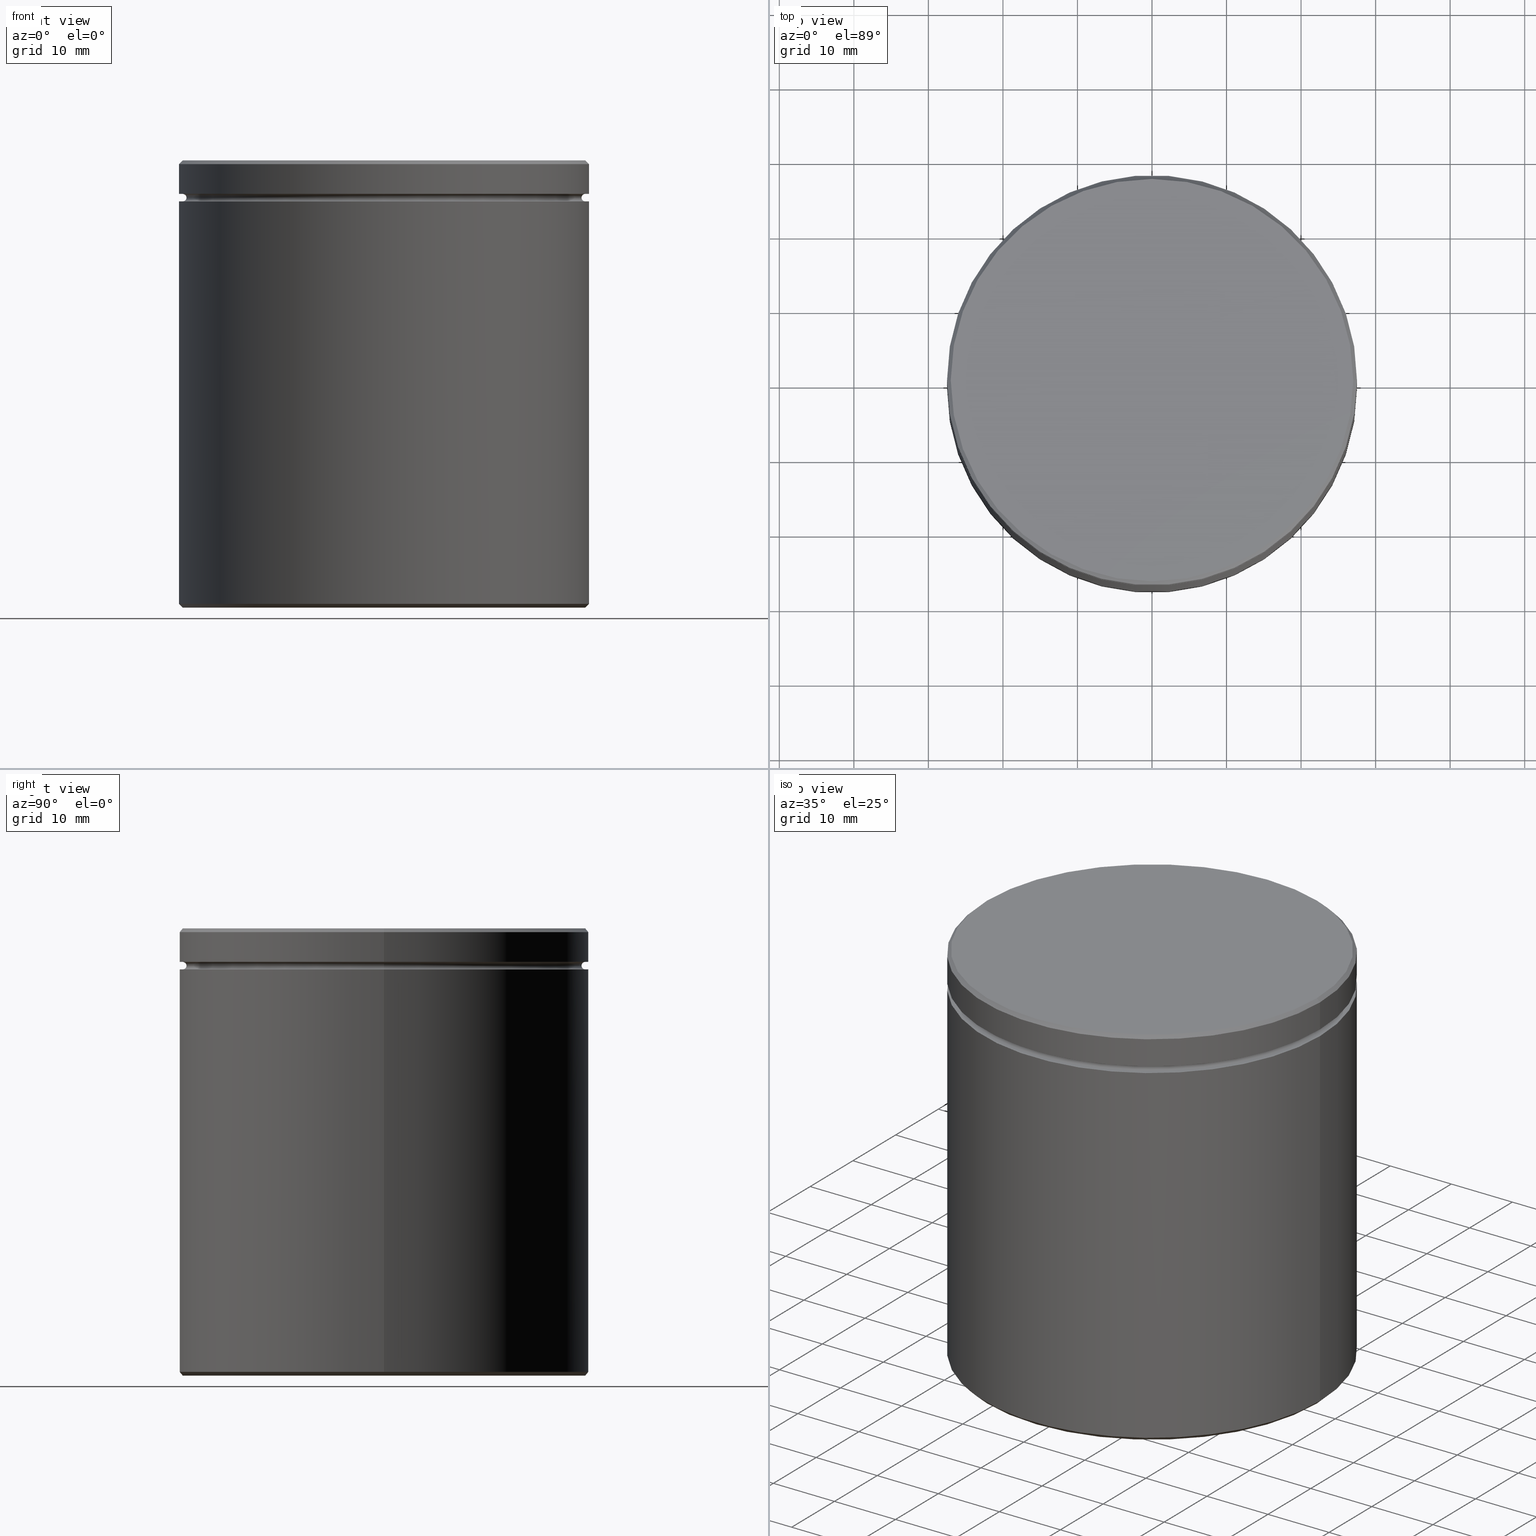
[diagram: canonical four-view strip — front | top / right | iso, engineering-drawing reading convention]
A machine part, canonical four-view strip (front | top / right | iso — engineering-drawing reading convention). The complete STEP part file that produces these views, byte-faithful:
ISO-10303-21;
HEADER;
FILE_DESCRIPTION (( 'STEP AP203' ),
    '1' );
FILE_NAME ('bf8c.STEP',
    '2024-01-02T17:55:30',
    ( '' ),
    ( '' ),
    'SwSTEP 2.0',
    'SolidWorks 2019',
    '' );
FILE_SCHEMA (( 'CONFIG_CONTROL_DESIGN' ));
ENDSEC;

DATA;
#1 = ORIENTED_EDGE ( 'NONE', *, *, #166, .F. ) ;
#2 = DIRECTION ( 'NONE',  ( -0.000000000000000000, -0.000000000000000000, 1.000000000000000000 ) ) ;
#3 = VERTEX_POINT ( 'NONE', #329 ) ;
#4 = AXIS2_PLACEMENT_3D ( 'NONE', #449, #474, #82 ) ;
#5 = DIRECTION ( 'NONE',  ( 0.000000000000000000, 0.000000000000000000, -1.000000000000000000 ) ) ;
#6 = ORIENTED_EDGE ( 'NONE', *, *, #241, .F. ) ;
#7 = EDGE_CURVE ( 'NONE', #211, #463, #333, .T. ) ;
#8 = LINE ( 'NONE', #197, #436 ) ;
#9 = ORIENTED_EDGE ( 'NONE', *, *, #166, .T. ) ;
#10 = PERSON_AND_ORGANIZATION ( #300, #244 ) ;
#11 = DIRECTION ( 'NONE',  ( 0.000000000000000000, 0.000000000000000000, -1.000000000000000000 ) ) ;
#12 = DIRECTION ( 'NONE',  ( -1.000000000000000000, 1.224646799147349509E-16, 0.000000000000000000 ) ) ;
#13 = EDGE_CURVE ( 'NONE', #356, #535, #221, .T. ) ;
#14 = FACE_OUTER_BOUND ( 'NONE', #50, .T. ) ;
#15 = AXIS2_PLACEMENT_3D ( 'NONE', #185, #49, #359 ) ;
#16 = CC_DESIGN_APPROVAL ( #229, ( #432 ) ) ;
#17 = CARTESIAN_POINT ( 'NONE',  ( 26.99999999999999289, 3.306546357697852944E-15, 0.000000000000000000 ) ) ;
#18 = APPLICATION_CONTEXT ( 'configuration controlled 3d designs of mechanical parts and assemblies' ) ;
#19 = CARTESIAN_POINT ( 'NONE',  ( -27.00000000000000000, 3.306546357697854128E-15, -5.500000000000000000 ) ) ;
#20 = DIRECTION ( 'NONE',  ( -0.000000000000000000, -0.000000000000000000, 1.000000000000000000 ) ) ;
#21 = CC_DESIGN_PERSON_AND_ORGANIZATION_ASSIGNMENT ( #10, #51, ( #510 ) ) ;
#22 = UNCERTAINTY_MEASURE_WITH_UNIT (LENGTH_MEASURE( 1.000000000000000082E-05 ), #125, 'distance_accuracy_value', 'NONE');
#23 = CARTESIAN_POINT ( 'NONE',  ( 27.00000000000000000, 3.306546357697854128E-15, -4.500000000000000888 ) ) ;
#24 = VERTEX_POINT ( 'NONE', #539 ) ;
#25 = ADVANCED_FACE ( 'NONE', ( #148 ), #240, .T. ) ;
#26 = DIRECTION ( 'NONE',  ( 0.000000000000000000, 0.000000000000000000, -1.000000000000000000 ) ) ;
#27 = CIRCLE ( 'NONE', #502, 20.00000000000000000 ) ;
#28 = CARTESIAN_POINT ( 'NONE',  ( -27.00000000000000000, 0.000000000000000000, -5.000000000000000888 ) ) ;
#29 = ORIENTED_EDGE ( 'NONE', *, *, #345, .T. ) ;
#30 = CARTESIAN_POINT ( 'NONE',  ( 27.50000000000000000, 0.000000000000000000, -59.50000000000001421 ) ) ;
#31 = DIRECTION ( 'NONE',  ( -1.000000000000000000, 0.000000000000000000, 0.000000000000000000 ) ) ;
#32 = AXIS2_PLACEMENT_3D ( 'NONE', #450, #246, #12 ) ;
#33 = AXIS2_PLACEMENT_3D ( 'NONE', #497, #11, #106 ) ;
#34 = PERSON_AND_ORGANIZATION ( #300, #244 ) ;
#35 = LOCAL_TIME ( 18, 55, 30.00000000000000000, #560 ) ;
#36 = DIRECTION ( 'NONE',  ( -0.000000000000000000, -0.000000000000000000, 1.000000000000000000 ) ) ;
#37 = EDGE_CURVE ( 'NONE', #236, #455, #309, .T. ) ;
#38 = DIRECTION ( 'NONE',  ( -1.000000000000000000, 0.000000000000000000, 0.000000000000000000 ) ) ;
#39 = EDGE_CURVE ( 'NONE', #406, #95, #88, .T. ) ;
#40 = CARTESIAN_POINT ( 'NONE',  ( 0.000000000000000000, 0.000000000000000000, -17.99999999999999645 ) ) ;
#41 = ORIENTED_EDGE ( 'NONE', *, *, #531, .F. ) ;
#42 = CIRCLE ( 'NONE', #116, 20.00000000000000000 ) ;
#43 = AXIS2_PLACEMENT_3D ( 'NONE', #520, #262, #434 ) ;
#44 = DIRECTION ( 'NONE',  ( -0.000000000000000000, -0.000000000000000000, 1.000000000000000000 ) ) ;
#45 = ORIENTED_EDGE ( 'NONE', *, *, #506, .F. ) ;
#46 = CARTESIAN_POINT ( 'NONE',  ( 0.000000000000000000, 0.000000000000000000, -4.999999999999999112 ) ) ;
#47 = ORIENTED_EDGE ( 'NONE', *, *, #202, .T. ) ;
#48 = PERSON_AND_ORGANIZATION_ROLE ( 'design_supplier' ) ;
#49 = DIRECTION ( 'NONE',  ( -0.000000000000000000, -0.000000000000000000, 1.000000000000000000 ) ) ;
#50 = EDGE_LOOP ( 'NONE', ( #228, #263, #556, #113 ) ) ;
#51 = PERSON_AND_ORGANIZATION_ROLE ( 'creator' ) ;
#52 = AXIS2_PLACEMENT_3D ( 'NONE', #83, #489, #563 ) ;
#53 = LINE ( 'NONE', #235, #420 ) ;
#54 = ORIENTED_EDGE ( 'NONE', *, *, #506, .T. ) ;
#55 = DIRECTION ( 'NONE',  ( 0.000000000000000000, 0.000000000000000000, -1.000000000000000000 ) ) ;
#56 = ORIENTED_EDGE ( 'NONE', *, *, #67, .T. ) ;
#57 = CARTESIAN_POINT ( 'NONE',  ( 27.00000000000000000, 0.000000000000000000, -5.500000000000000000 ) ) ;
#58 = DIRECTION ( 'NONE',  ( -1.000000000000000000, 0.000000000000000000, 0.000000000000000000 ) ) ;
#59 = PLANE ( 'NONE',  #284 ) ;
#60 = CIRCLE ( 'NONE', #472, 27.50000000000000000 ) ;
#61 = DIRECTION ( 'NONE',  ( 1.000000000000000000, 0.000000000000000000, 0.000000000000000000 ) ) ;
#62 = EDGE_CURVE ( 'NONE', #95, #181, #413, .T. ) ;
#63 = CARTESIAN_POINT ( 'NONE',  ( 27.00000000000000000, 3.306546357697853733E-15, -5.000000000000000888 ) ) ;
#64 = ORIENTED_EDGE ( 'NONE', *, *, #525, .F. ) ;
#65 = EDGE_CURVE ( 'NONE', #463, #211, #151, .T. ) ;
#66 = ORIENTED_EDGE ( 'NONE', *, *, #382, .T. ) ;
#67 = EDGE_CURVE ( 'NONE', #468, #211, #381, .T. ) ;
#68 = CARTESIAN_POINT ( 'NONE',  ( 0.000000000000000000, 0.000000000000000000, -17.99999999999999645 ) ) ;
#69 = VECTOR ( 'NONE', #227, 1000.000000000000000 ) ;
#70 = DIRECTION ( 'NONE',  ( 1.000000000000000000, 0.000000000000000000, 0.000000000000000000 ) ) ;
#71 = CARTESIAN_POINT ( 'NONE',  ( -27.50000000000000000, 3.367778697655221307E-15, -5.500000000000000000 ) ) ;
#72 = EDGE_CURVE ( 'NONE', #181, #461, #427, .T. ) ;
#73 = EDGE_LOOP ( 'NONE', ( #107, #191 ) ) ;
#74 = COORDINATED_UNIVERSAL_TIME_OFFSET ( 1, 0, .AHEAD. ) ;
#75 = APPROVAL ( #301, 'NEUR�EN�' ) ;
#76 = APPLICATION_CONTEXT ( 'configuration controlled 3d designs of mechanical parts and assemblies' ) ;
#77 = CIRCLE ( 'NONE', #108, 26.99999999999999289 ) ;
#78 = CIRCLE ( 'NONE', #377, 20.00000000000000000 ) ;
#79 = PERSON_AND_ORGANIZATION ( #300, #244 ) ;
#80 = LOCAL_TIME ( 18, 55, 30.00000000000000000, #135 ) ;
#81 = DIRECTION ( 'NONE',  ( -1.000000000000000000, 0.000000000000000000, 0.000000000000000000 ) ) ;
#82 = DIRECTION ( 'NONE',  ( 1.000000000000000000, 0.000000000000000000, 0.000000000000000000 ) ) ;
#83 = CARTESIAN_POINT ( 'NONE',  ( 0.000000000000000000, 0.000000000000000000, 0.000000000000000000 ) ) ;
#84 = VERTEX_POINT ( 'NONE', #257 ) ;
#85 = DATE_AND_TIME ( #169, #35 ) ;
#86 = DIRECTION ( 'NONE',  ( -0.000000000000000000, -0.000000000000000000, -1.000000000000000000 ) ) ;
#87 = ORIENTED_EDGE ( 'NONE', *, *, #516, .F. ) ;
#88 = CIRCLE ( 'NONE', #195, 26.99999999999999289 ) ;
#89 = AXIS2_PLACEMENT_3D ( 'NONE', #40, #86, #437 ) ;
#90 = CARTESIAN_POINT ( 'NONE',  ( 0.000000000000000000, 0.000000000000000000, -5.500000000000000000 ) ) ;
#91 = ORIENTED_EDGE ( 'NONE', *, *, #67, .F. ) ;
#92 = DATE_AND_TIME ( #411, #234 ) ;
#93 = CARTESIAN_POINT ( 'NONE',  ( 0.000000000000000000, 0.000000000000000000, -17.99999999999999645 ) ) ;
#94 = ADVANCED_FACE ( 'NONE', ( #464, #255 ), #561, .T. ) ;
#95 = VERTEX_POINT ( 'NONE', #212 ) ;
#96 = DIRECTION ( 'NONE',  ( -0.000000000000000000, -0.000000000000000000, 1.000000000000000000 ) ) ;
#97 = EDGE_LOOP ( 'NONE', ( #448, #142, #161, #91 ) ) ;
#98 = COORDINATED_UNIVERSAL_TIME_OFFSET ( 1, 0, .AHEAD. ) ;
#99 = AXIS2_PLACEMENT_3D ( 'NONE', #320, #548, #281 ) ;
#100 = AXIS2_PLACEMENT_3D ( 'NONE', #260, #378, #130 ) ;
#101 = FACE_OUTER_BOUND ( 'NONE', #226, .T. ) ;
#102 = EDGE_LOOP ( 'NONE', ( #9, #419 ) ) ;
#103 = APPROVAL_STATUS ( 'not_yet_approved' ) ;
#104 = DIRECTION ( 'NONE',  ( -1.000000000000000000, 0.000000000000000000, 0.000000000000000000 ) ) ;
#105 = EDGE_LOOP ( 'NONE', ( #41, #1, #56, #303 ) ) ;
#106 = DIRECTION ( 'NONE',  ( -1.000000000000000000, 0.000000000000000000, 0.000000000000000000 ) ) ;
#107 = ORIENTED_EDGE ( 'NONE', *, *, #39, .T. ) ;
#108 = AXIS2_PLACEMENT_3D ( 'NONE', #466, #467, #70 ) ;
#109 = CARTESIAN_POINT ( 'NONE',  ( 26.50000000000000000, 0.000000000000000000, -4.999999999999999112 ) ) ;
#110 = VECTOR ( 'NONE', #96, 1000.000000000000000 ) ;
#111 = ORIENTED_EDGE ( 'NONE', *, *, #324, .T. ) ;
#112 = PERSON_AND_ORGANIZATION ( #300, #244 ) ;
#113 = ORIENTED_EDGE ( 'NONE', *, *, #327, .F. ) ;
#114 = DIRECTION ( 'NONE',  ( 0.000000000000000000, 0.000000000000000000, -1.000000000000000000 ) ) ;
#115 = ADVANCED_FACE ( 'NONE', ( #299 ), #342, .F. ) ;
#116 = AXIS2_PLACEMENT_3D ( 'NONE', #68, #379, #422 ) ;
#117 = CARTESIAN_POINT ( 'NONE',  ( 0.000000000000000000, 0.000000000000000000, -60.00000000000000000 ) ) ;
#118 = TOROIDAL_SURFACE ( 'NONE', #33, 27.00000000000000000, 0.5000000000000000000 ) ;
#119 = ORIENTED_EDGE ( 'NONE', *, *, #140, .T. ) ;
#120 = EDGE_CURVE ( 'NONE', #376, #358, #292, .T. ) ;
#121 = CARTESIAN_POINT ( 'NONE',  ( 0.000000000000000000, 0.000000000000000000, -5.500000000000000000 ) ) ;
#122 = VERTEX_POINT ( 'NONE', #170 ) ;
#123 = EDGE_CURVE ( 'NONE', #568, #84, #42, .T. ) ;
#124 = DIRECTION ( 'NONE',  ( 1.000000000000000000, 0.000000000000000000, 0.000000000000000000 ) ) ;
#125 =( LENGTH_UNIT ( ) NAMED_UNIT ( * ) SI_UNIT ( .MILLI., .METRE. ) );
#126 = DIRECTION ( 'NONE',  ( 0.000000000000000000, 0.000000000000000000, -1.000000000000000000 ) ) ;
#127 = AXIS2_PLACEMENT_3D ( 'NONE', #373, #549, #157 ) ;
#128 = ADVANCED_FACE ( 'NONE', ( #469 ), #517, .T. ) ;
#129 = CIRCLE ( 'NONE', #298, 26.50000000000000000 ) ;
#130 = DIRECTION ( 'NONE',  ( 1.000000000000000000, 0.000000000000000000, 0.000000000000000000 ) ) ;
#131 = FACE_OUTER_BOUND ( 'NONE', #137, .T. ) ;
#132 = ORIENTED_EDGE ( 'NONE', *, *, #382, .F. ) ;
#133 = DIRECTION ( 'NONE',  ( 1.000000000000000000, 0.000000000000000000, 0.000000000000000000 ) ) ;
#134 = EDGE_LOOP ( 'NONE', ( #546, #119 ) ) ;
#135 = COORDINATED_UNIVERSAL_TIME_OFFSET ( 1, 0, .AHEAD. ) ;
#136 = CARTESIAN_POINT ( 'NONE',  ( 0.000000000000000000, 0.000000000000000000, -4.999999999999999112 ) ) ;
#137 = EDGE_LOOP ( 'NONE', ( #416, #426, #371, #132 ) ) ;
#138 = AXIS2_PLACEMENT_3D ( 'NONE', #28, #214, #26 ) ;
#139 = TOROIDAL_SURFACE ( 'NONE', #566, 27.00000000000000000, 0.5000000000000000000 ) ;
#140 = EDGE_CURVE ( 'NONE', #455, #403, #242, .T. ) ;
#141 = LINE ( 'NONE', #534, #110 ) ;
#142 = ORIENTED_EDGE ( 'NONE', *, *, #531, .T. ) ;
#143 = DATE_AND_TIME ( #444, #184 ) ;
#144 = DIRECTION ( 'NONE',  ( -0.000000000000000000, -0.000000000000000000, 1.000000000000000000 ) ) ;
#145 = ADVANCED_FACE ( 'NONE', ( #294 ), #558, .F. ) ;
#146 = ORIENTED_EDGE ( 'NONE', *, *, #39, .F. ) ;
#147 = CARTESIAN_POINT ( 'NONE',  ( -27.50000000000000000, 3.367778697655221307E-15, 0.000000000000000000 ) ) ;
#148 = FACE_OUTER_BOUND ( 'NONE', #361, .T. ) ;
#149 = EDGE_CURVE ( 'NONE', #236, #358, #213, .T. ) ;
#150 = COORDINATED_UNIVERSAL_TIME_OFFSET ( 1, 0, .AHEAD. ) ;
#151 = CIRCLE ( 'NONE', #127, 27.50000000000000000 ) ;
#152 = DIRECTION ( 'NONE',  ( 1.000000000000000000, 0.000000000000000000, 0.000000000000000000 ) ) ;
#153 = ORIENTED_EDGE ( 'NONE', *, *, #217, .F. ) ;
#154 = CARTESIAN_POINT ( 'NONE',  ( 27.50000000000000000, 0.000000000000000000, 0.000000000000000000 ) ) ;
#155 = CARTESIAN_POINT ( 'NONE',  ( 0.000000000000000000, 0.000000000000000000, -60.00000000000000000 ) ) ;
#156 = DIRECTION ( 'NONE',  ( -0.000000000000000000, -0.000000000000000000, -1.000000000000000000 ) ) ;
#157 = DIRECTION ( 'NONE',  ( -1.000000000000000000, 0.000000000000000000, 0.000000000000000000 ) ) ;
#158 = AXIS2_PLACEMENT_3D ( 'NONE', #429, #36, #163 ) ;
#159 = FACE_OUTER_BOUND ( 'NONE', #73, .T. ) ;
#160 = AXIS2_PLACEMENT_3D ( 'NONE', #136, #308, #224 ) ;
#161 = ORIENTED_EDGE ( 'NONE', *, *, #7, .F. ) ;
#162 = CC_DESIGN_PERSON_AND_ORGANIZATION_ASSIGNMENT ( #207, #518, ( #432 ) ) ;
#163 = DIRECTION ( 'NONE',  ( 1.000000000000000000, 0.000000000000000000, 0.000000000000000000 ) ) ;
#164 = EDGE_CURVE ( 'NONE', #496, #403, #349, .T. ) ;
#165 = DIRECTION ( 'NONE',  ( 0.000000000000000000, -1.000000000000000000, 0.000000000000000000 ) ) ;
#166 = EDGE_CURVE ( 'NONE', #468, #552, #258, .T. ) ;
#167 = DIRECTION ( 'NONE',  ( -1.000000000000000000, 0.000000000000000000, -0.000000000000000000 ) ) ;
#168 = DIRECTION ( 'NONE',  ( 0.000000000000000000, 0.000000000000000000, -1.000000000000000000 ) ) ;
#169 = CALENDAR_DATE ( 2024, 2, 1 ) ;
#170 = CARTESIAN_POINT ( 'NONE',  ( 27.50000000000000000, 0.000000000000000000, -5.500000000000000000 ) ) ;
#171 = FACE_OUTER_BOUND ( 'NONE', #179, .T. ) ;
#172 = EDGE_CURVE ( 'NONE', #95, #406, #77, .T. ) ;
#173 = VECTOR ( 'NONE', #177, 1000.000000000000000 ) ;
#174 = CARTESIAN_POINT ( 'NONE',  ( 20.00000000000000000, 2.449293598294706119E-15, -17.99999999999999645 ) ) ;
#175 = DIRECTION ( 'NONE',  ( 0.000000000000000000, 0.000000000000000000, -1.000000000000000000 ) ) ;
#176 = VERTEX_POINT ( 'NONE', #71 ) ;
#177 = DIRECTION ( 'NONE',  ( -0.000000000000000000, -0.000000000000000000, 1.000000000000000000 ) ) ;
#178 = DIRECTION ( 'NONE',  ( -1.000000000000000000, 0.000000000000000000, -0.000000000000000000 ) ) ;
#179 = EDGE_LOOP ( 'NONE', ( #269, #364, #289, #353 ) ) ;
#180 = ADVANCED_FACE ( 'NONE', ( #256 ), #323, .T. ) ;
#181 = VERTEX_POINT ( 'NONE', #343 ) ;
#182 = AXIS2_PLACEMENT_3D ( 'NONE', #541, #203, #503 ) ;
#183 = ADVANCED_FACE ( 'NONE', ( #346 ), #209, .T. ) ;
#184 = LOCAL_TIME ( 18, 55, 30.00000000000000000, #150 ) ;
#185 = CARTESIAN_POINT ( 'NONE',  ( 0.000000000000000000, 0.000000000000000000, -4.500000000000000888 ) ) ;
#186 = ORIENTED_EDGE ( 'NONE', *, *, #62, .T. ) ;
#187 = SHAPE_DEFINITION_REPRESENTATION ( #543, #188 ) ;
#188 = ADVANCED_BREP_SHAPE_REPRESENTATION ( 'bf8c', ( #250, #100 ), #222 ) ;
#189 = FACE_BOUND ( 'NONE', #134, .T. ) ;
#190 = EDGE_CURVE ( 'NONE', #84, #568, #78, .T. ) ;
#191 = ORIENTED_EDGE ( 'NONE', *, *, #172, .T. ) ;
#192 = SECURITY_CLASSIFICATION_LEVEL ( 'unclassified' ) ;
#193 = CARTESIAN_POINT ( 'NONE',  ( -20.00000000000000000, 0.000000000000000000, -60.00000000000000000 ) ) ;
#194 = CARTESIAN_POINT ( 'NONE',  ( 0.000000000000000000, 0.000000000000000000, 0.000000000000000000 ) ) ;
#195 = AXIS2_PLACEMENT_3D ( 'NONE', #194, #20, #368 ) ;
#196 = VECTOR ( 'NONE', #375, 1000.000000000000000 ) ;
#197 = CARTESIAN_POINT ( 'NONE',  ( 20.00000000000000000, 2.449293598294706119E-15, -17.99999999999999645 ) ) ;
#198 = ORIENTED_EDGE ( 'NONE', *, *, #190, .T. ) ;
#199 = ADVANCED_FACE ( 'NONE', ( #391, #523 ), #302, .T. ) ;
#200 = CARTESIAN_POINT ( 'NONE',  ( -27.50000000000000000, 3.367778697655221307E-15, -59.50000000000001421 ) ) ;
#201 = DIRECTION ( 'NONE',  ( 0.7071067811865426878, 8.659560562354874926E-17, -0.7071067811865524577 ) ) ;
#202 = EDGE_CURVE ( 'NONE', #496, #236, #428, .T. ) ;
#203 = DIRECTION ( 'NONE',  ( -0.000000000000000000, -0.000000000000000000, 1.000000000000000000 ) ) ;
#204 = EDGE_LOOP ( 'NONE', ( #87, #504 ) ) ;
#205 = AXIS2_PLACEMENT_3D ( 'NONE', #208, #126, #390 ) ;
#206 = VECTOR ( 'NONE', #156, 1000.000000000000000 ) ;
#207 = PERSON_AND_ORGANIZATION ( #300, #244 ) ;
#208 = CARTESIAN_POINT ( 'NONE',  ( 0.000000000000000000, 0.000000000000000000, -0.5000000000000143219 ) ) ;
#209 = CYLINDRICAL_SURFACE ( 'NONE', #158, 27.50000000000000000 ) ;
#210 = ADVANCED_FACE ( 'NONE', ( #526 ), #483, .T. ) ;
#211 = VERTEX_POINT ( 'NONE', #475 ) ;
#212 = CARTESIAN_POINT ( 'NONE',  ( 26.99999999999999289, 3.337162527676537126E-15, 0.000000000000000000 ) ) ;
#213 = CIRCLE ( 'NONE', #138, 0.5000000000000004441 ) ;
#214 = DIRECTION ( 'NONE',  ( -0.000000000000000000, -1.000000000000000000, -0.000000000000000000 ) ) ;
#215 = CIRCLE ( 'NONE', #530, 27.50000000000000000 ) ;
#216 = SECURITY_CLASSIFICATION ( '', '', #192 ) ;
#217 = EDGE_CURVE ( 'NONE', #122, #176, #60, .T. ) ;
#218 = CARTESIAN_POINT ( 'NONE',  ( 0.000000000000000000, 0.000000000000000000, -17.99999999999999645 ) ) ;
#219 = CARTESIAN_POINT ( 'NONE',  ( 0.000000000000000000, 0.000000000000000000, 0.000000000000000000 ) ) ;
#220 = CARTESIAN_POINT ( 'NONE',  ( 0.000000000000000000, 0.000000000000000000, -4.999999999999999112 ) ) ;
#221 = CIRCLE ( 'NONE', #232, 20.00000000000000000 ) ;
#222 =( GEOMETRIC_REPRESENTATION_CONTEXT ( 3 ) GLOBAL_UNCERTAINTY_ASSIGNED_CONTEXT ( ( #22 ) ) GLOBAL_UNIT_ASSIGNED_CONTEXT ( ( #125, #304, #354 ) ) REPRESENTATION_CONTEXT ( 'NONE', 'WORKASPACE' ) );
#223 = ORIENTED_EDGE ( 'NONE', *, *, #482, .F. ) ;
#224 = DIRECTION ( 'NONE',  ( 1.000000000000000000, 0.000000000000000000, 0.000000000000000000 ) ) ;
#225 = ADVANCED_FACE ( 'NONE', ( #355 ), #310, .T. ) ;
#226 = EDGE_LOOP ( 'NONE', ( #318, #238 ) ) ;
#227 = DIRECTION ( 'NONE',  ( -0.7071067811865426878, 0.000000000000000000, -0.7071067811865524577 ) ) ;
#228 = ORIENTED_EDGE ( 'NONE', *, *, #516, .T. ) ;
#229 = APPROVAL ( #348, 'NEUR�EN�' ) ;
#230 = FACE_OUTER_BOUND ( 'NONE', #314, .T. ) ;
#231 = ORIENTED_EDGE ( 'NONE', *, *, #140, .F. ) ;
#232 = AXIS2_PLACEMENT_3D ( 'NONE', #155, #366, #58 ) ;
#233 = AXIS2_PLACEMENT_3D ( 'NONE', #93, #439, #569 ) ;
#234 = LOCAL_TIME ( 18, 55, 30.00000000000000000, #98 ) ;
#235 = CARTESIAN_POINT ( 'NONE',  ( -27.50000000000000000, 3.367778697655221307E-15, -59.50000000000001421 ) ) ;
#236 = VERTEX_POINT ( 'NONE', #268 ) ;
#237 = CARTESIAN_POINT ( 'NONE',  ( 0.000000000000000000, 0.000000000000000000, 0.000000000000000000 ) ) ;
#238 = ORIENTED_EDGE ( 'NONE', *, *, #264, .T. ) ;
#239 = CARTESIAN_POINT ( 'NONE',  ( -26.99999999999999289, 0.000000000000000000, 0.000000000000000000 ) ) ;
#240 = CYLINDRICAL_SURFACE ( 'NONE', #393, 27.50000000000000000 ) ;
#241 = EDGE_CURVE ( 'NONE', #406, #461, #532, .T. ) ;
#242 = CIRCLE ( 'NONE', #551, 27.00000000000000000 ) ;
#243 = CIRCLE ( 'NONE', #43, 27.50000000000000000 ) ;
#244 = ORGANIZATION ( 'NEUR�EN�', 'NEUR�EN�', '' ) ;
#245 = DIRECTION ( 'NONE',  ( 0.000000000000000000, 0.000000000000000000, -1.000000000000000000 ) ) ;
#246 = DIRECTION ( 'NONE',  ( 1.224646799147353207E-16, 1.000000000000000000, 0.000000000000000000 ) ) ;
#247 = ADVANCED_FACE ( 'NONE', ( #171 ), #253, .F. ) ;
#248 = DIRECTION ( 'NONE',  ( -1.000000000000000000, -1.224646799147349509E-16, 0.000000000000000000 ) ) ;
#249 = ORIENTED_EDGE ( 'NONE', *, *, #172, .F. ) ;
#250 = MANIFOLD_SOLID_BREP ( 'Zaoblit1', #492 ) ;
#251 = EDGE_CURVE ( 'NONE', #461, #181, #387, .T. ) ;
#252 = EDGE_LOOP ( 'NONE', ( #490, #223 ) ) ;
#253 = TOROIDAL_SURFACE ( 'NONE', #160, 27.00000000000000000, 0.5000000000000000000 ) ;
#254 = APPROVAL_PERSON_ORGANIZATION ( #34, #229, #462 ) ;
#255 = FACE_BOUND ( 'NONE', #252, .T. ) ;
#256 = FACE_OUTER_BOUND ( 'NONE', #105, .T. ) ;
#257 = CARTESIAN_POINT ( 'NONE',  ( -20.00000000000000000, 0.000000000000000000, -17.99999999999999645 ) ) ;
#258 = CIRCLE ( 'NONE', #283, 27.00000000000002487 ) ;
#259 = DIRECTION ( 'NONE',  ( -0.000000000000000000, -0.000000000000000000, 1.000000000000000000 ) ) ;
#260 = CARTESIAN_POINT ( 'NONE',  ( 0.000000000000000000, 0.000000000000000000, 0.000000000000000000 ) ) ;
#261 = DIRECTION ( 'NONE',  ( -1.000000000000000000, 0.000000000000000000, 0.000000000000000000 ) ) ;
#262 = DIRECTION ( 'NONE',  ( -0.000000000000000000, -0.000000000000000000, 1.000000000000000000 ) ) ;
#263 = ORIENTED_EDGE ( 'NONE', *, *, #547, .T. ) ;
#264 = EDGE_CURVE ( 'NONE', #176, #122, #243, .T. ) ;
#265 = FACE_OUTER_BOUND ( 'NONE', #336, .T. ) ;
#266 = AXIS2_PLACEMENT_3D ( 'NONE', #537, #55, #365 ) ;
#267 = ORIENTED_EDGE ( 'NONE', *, *, #120, .F. ) ;
#268 = CARTESIAN_POINT ( 'NONE',  ( -26.50000000000000000, 3.275930187719169552E-15, -4.999999999999999112 ) ) ;
#269 = ORIENTED_EDGE ( 'NONE', *, *, #286, .F. ) ;
#270 = PERSON_AND_ORGANIZATION ( #300, #244 ) ;
#271 = DIRECTION ( 'NONE',  ( 0.000000000000000000, 0.000000000000000000, -1.000000000000000000 ) ) ;
#272 = ORIENTED_EDGE ( 'NONE', *, *, #72, .F. ) ;
#273 = CARTESIAN_POINT ( 'NONE',  ( -20.00000000000000000, 0.000000000000000000, -17.99999999999999645 ) ) ;
#274 = EDGE_LOOP ( 'NONE', ( #111, #438 ) ) ;
#275 = PLANE ( 'NONE',  #4 ) ;
#276 = DIRECTION ( 'NONE',  ( -0.000000000000000000, -0.000000000000000000, 1.000000000000000000 ) ) ;
#277 = APPROVAL_ROLE ( '' ) ;
#278 = APPROVAL ( #103, 'NEUR�EN�' ) ;
#279 = DIRECTION ( 'NONE',  ( 1.000000000000000000, 0.000000000000000000, 0.000000000000000000 ) ) ;
#280 = DIRECTION ( 'NONE',  ( -0.000000000000000000, -0.000000000000000000, 1.000000000000000000 ) ) ;
#281 = DIRECTION ( 'NONE',  ( 1.000000000000000000, 0.000000000000000000, 0.000000000000000000 ) ) ;
#282 = ORIENTED_EDGE ( 'NONE', *, *, #525, .T. ) ;
#283 = AXIS2_PLACEMENT_3D ( 'NONE', #117, #293, #261 ) ;
#284 = AXIS2_PLACEMENT_3D ( 'NONE', #237, #335, #499 ) ;
#285 = DIRECTION ( 'NONE',  ( -0.000000000000000000, -0.000000000000000000, 1.000000000000000000 ) ) ;
#286 = EDGE_CURVE ( 'NONE', #236, #496, #129, .T. ) ;
#287 = ORIENTED_EDGE ( 'NONE', *, *, #72, .T. ) ;
#288 = APPROVAL_DATE_TIME ( #85, #229 ) ;
#289 = ORIENTED_EDGE ( 'NONE', *, *, #352, .F. ) ;
#290 = ADVANCED_FACE ( 'NONE', ( #131 ), #442, .F. ) ;
#291 = CARTESIAN_POINT ( 'NONE',  ( 27.00000000000000000, 0.000000000000000000, -4.999999999999999112 ) ) ;
#292 = CIRCLE ( 'NONE', #501, 27.00000000000000000 ) ;
#293 = DIRECTION ( 'NONE',  ( 0.000000000000000000, 0.000000000000000000, -1.000000000000000000 ) ) ;
#294 = FACE_OUTER_BOUND ( 'NONE', #435, .T. ) ;
#295 = ORIENTED_EDGE ( 'NONE', *, *, #123, .T. ) ;
#296 = DIRECTION ( 'NONE',  ( 1.000000000000000000, 0.000000000000000000, 0.000000000000000000 ) ) ;
#297 = PERSON_AND_ORGANIZATION_ROLE ( 'design_owner' ) ;
#298 = AXIS2_PLACEMENT_3D ( 'NONE', #220, #2, #480 ) ;
#299 = FACE_OUTER_BOUND ( 'NONE', #440, .T. ) ;
#300 = PERSON ( 'NEUR�EN�', 'NEUR�EN�', 'NEUR�EN�', ('NEUR�EN�'), ('NEUR�EN�'), ('NEUR�EN�') ) ;
#301 = APPROVAL_STATUS ( 'not_yet_approved' ) ;
#302 = PLANE ( 'NONE',  #471 ) ;
#303 = ORIENTED_EDGE ( 'NONE', *, *, #65, .F. ) ;
#304 =( NAMED_UNIT ( * ) PLANE_ANGLE_UNIT ( ) SI_UNIT ( $, .RADIAN. ) );
#305 = ADVANCED_FACE ( 'NONE', ( #567 ), #396, .T. ) ;
#306 = DIRECTION ( 'NONE',  ( -0.000000000000000000, -0.000000000000000000, 1.000000000000000000 ) ) ;
#307 = ORIENTED_EDGE ( 'NONE', *, *, #241, .T. ) ;
#308 = DIRECTION ( 'NONE',  ( -0.000000000000000000, -0.000000000000000000, 1.000000000000000000 ) ) ;
#309 = CIRCLE ( 'NONE', #32, 0.5000000000000004441 ) ;
#310 = CONICAL_SURFACE ( 'NONE', #52, 26.99999999999999289, 0.7853981633974415066 ) ;
#311 = ORIENTED_EDGE ( 'NONE', *, *, #190, .F. ) ;
#312 = CC_DESIGN_SECURITY_CLASSIFICATION ( #216, ( #510 ) ) ;
#313 = CYLINDRICAL_SURFACE ( 'NONE', #457, 27.50000000000000000 ) ;
#314 = EDGE_LOOP ( 'NONE', ( #408, #29, #153, #45 ) ) ;
#315 = CALENDAR_DATE ( 2024, 2, 1 ) ;
#316 = DIRECTION ( 'NONE',  ( 1.000000000000000000, 0.000000000000000000, 0.000000000000000000 ) ) ;
#317 = ADVANCED_FACE ( 'NONE', ( #265 ), #139, .F. ) ;
#318 = ORIENTED_EDGE ( 'NONE', *, *, #217, .T. ) ;
#319 = PERSON_AND_ORGANIZATION_ROLE ( 'classification_officer' ) ;
#320 = CARTESIAN_POINT ( 'NONE',  ( 0.000000000000000000, 0.000000000000000000, -4.500000000000000888 ) ) ;
#321 = CARTESIAN_POINT ( 'NONE',  ( 0.000000000000000000, 0.000000000000000000, 0.000000000000000000 ) ) ;
#322 = CC_DESIGN_PERSON_AND_ORGANIZATION_ASSIGNMENT ( #491, #319, ( #216 ) ) ;
#323 = CONICAL_SURFACE ( 'NONE', #414, 27.50000000000000000, 0.7853981633974378429 ) ;
#324 = EDGE_CURVE ( 'NONE', #358, #376, #369, .T. ) ;
#325 = CARTESIAN_POINT ( 'NONE',  ( 27.00000000000002487, 0.000000000000000000, -60.00000000000000000 ) ) ;
#326 = ORIENTED_EDGE ( 'NONE', *, *, #251, .F. ) ;
#327 = EDGE_CURVE ( 'NONE', #3, #181, #141, .T. ) ;
#328 = DIRECTION ( 'NONE',  ( -0.000000000000000000, -0.000000000000000000, 1.000000000000000000 ) ) ;
#329 = CARTESIAN_POINT ( 'NONE',  ( 27.50000000000000000, 0.000000000000000000, -4.500000000000000888 ) ) ;
#330 = ADVANCED_FACE ( 'NONE', ( #230 ), #313, .T. ) ;
#331 = CARTESIAN_POINT ( 'NONE',  ( 0.000000000000000000, 0.000000000000000000, -60.00000000000000000 ) ) ;
#332 = EDGE_LOOP ( 'NONE', ( #198, #295 ) ) ;
#333 = CIRCLE ( 'NONE', #564, 27.50000000000000000 ) ;
#334 = AXIS2_PLACEMENT_3D ( 'NONE', #63, #454, #248 ) ;
#335 = DIRECTION ( 'NONE',  ( 0.000000000000000000, -0.000000000000000000, 1.000000000000000000 ) ) ;
#336 = EDGE_LOOP ( 'NONE', ( #524, #527, #481, #231 ) ) ;
#337 = EDGE_CURVE ( 'NONE', #24, #3, #215, .T. ) ;
#338 = DIRECTION ( 'NONE',  ( 1.000000000000000000, 0.000000000000000000, 0.000000000000000000 ) ) ;
#339 = DIRECTION ( 'NONE',  ( 0.000000000000000000, 0.000000000000000000, -1.000000000000000000 ) ) ;
#340 = AXIS2_PLACEMENT_3D ( 'NONE', #219, #5, #38 ) ;
#341 = APPROVAL_PERSON_ORGANIZATION ( #540, #278, #536 ) ;
#342 = CYLINDRICAL_SURFACE ( 'NONE', #529, 20.00000000000000000 ) ;
#343 = CARTESIAN_POINT ( 'NONE',  ( 27.50000000000000000, 0.000000000000000000, -0.5000000000000143219 ) ) ;
#344 = CALENDAR_DATE ( 2024, 2, 1 ) ;
#345 = EDGE_CURVE ( 'NONE', #463, #176, #417, .T. ) ;
#346 = FACE_OUTER_BOUND ( 'NONE', #397, .T. ) ;
#347 = ORIENTED_EDGE ( 'NONE', *, *, #324, .F. ) ;
#348 = APPROVAL_STATUS ( 'not_yet_approved' ) ;
#349 = CIRCLE ( 'NONE', #456, 0.5000000000000004441 ) ;
#350 = VECTOR ( 'NONE', #328, 1000.000000000000000 ) ;
#351 = CARTESIAN_POINT ( 'NONE',  ( 0.000000000000000000, 0.000000000000000000, -4.999999999999999112 ) ) ;
#352 = EDGE_CURVE ( 'NONE', #403, #455, #447, .T. ) ;
#353 = ORIENTED_EDGE ( 'NONE', *, *, #164, .F. ) ;
#354 =( NAMED_UNIT ( * ) SI_UNIT ( $, .STERADIAN. ) SOLID_ANGLE_UNIT ( ) );
#355 = FACE_OUTER_BOUND ( 'NONE', #562, .T. ) ;
#356 = VERTEX_POINT ( 'NONE', #193 ) ;
#357 = CARTESIAN_POINT ( 'NONE',  ( 0.000000000000000000, 27.50000000000000000, -4.500000000000000888 ) ) ;
#358 = VERTEX_POINT ( 'NONE', #493 ) ;
#359 = DIRECTION ( 'NONE',  ( -1.000000000000000000, 0.000000000000000000, 0.000000000000000000 ) ) ;
#360 = VECTOR ( 'NONE', #201, 1000.000000000000000 ) ;
#361 = EDGE_LOOP ( 'NONE', ( #544, #443, #54, #485 ) ) ;
#362 = CC_DESIGN_APPROVAL ( #75, ( #510 ) ) ;
#363 = DIRECTION ( 'NONE',  ( 1.000000000000000000, 0.000000000000000000, 0.000000000000000000 ) ) ;
#364 = ORIENTED_EDGE ( 'NONE', *, *, #37, .T. ) ;
#365 = DIRECTION ( 'NONE',  ( 1.000000000000000000, 0.000000000000000000, 0.000000000000000000 ) ) ;
#366 = DIRECTION ( 'NONE',  ( 0.000000000000000000, 0.000000000000000000, -1.000000000000000000 ) ) ;
#367 = CARTESIAN_POINT ( 'NONE',  ( 0.000000000000000000, 0.000000000000000000, -4.500000000000000888 ) ) ;
#368 = DIRECTION ( 'NONE',  ( 1.000000000000000000, 0.000000000000000000, 0.000000000000000000 ) ) ;
#369 = CIRCLE ( 'NONE', #15, 27.00000000000000000 ) ;
#370 = LINE ( 'NONE', #154, #350 ) ;
#371 = ORIENTED_EDGE ( 'NONE', *, *, #482, .T. ) ;
#372 = DIRECTION ( 'NONE',  ( -0.000000000000000000, -0.000000000000000000, -1.000000000000000000 ) ) ;
#373 = CARTESIAN_POINT ( 'NONE',  ( 0.000000000000000000, 0.000000000000000000, -59.50000000000001421 ) ) ;
#374 = DESIGN_CONTEXT ( 'detailed design', #18, 'design' ) ;
#375 = DIRECTION ( 'NONE',  ( -0.000000000000000000, -0.000000000000000000, 1.000000000000000000 ) ) ;
#376 = VERTEX_POINT ( 'NONE', #23 ) ;
#377 = AXIS2_PLACEMENT_3D ( 'NONE', #218, #505, #423 ) ;
#378 = DIRECTION ( 'NONE',  ( 0.000000000000000000, 0.000000000000000000, 1.000000000000000000 ) ) ;
#379 = DIRECTION ( 'NONE',  ( 0.000000000000000000, 0.000000000000000000, -1.000000000000000000 ) ) ;
#380 = CC_DESIGN_DATE_AND_TIME_ASSIGNMENT ( #92, #401, ( #216 ) ) ;
#381 = LINE ( 'NONE', #30, #445 ) ;
#382 = EDGE_CURVE ( 'NONE', #84, #356, #452, .T. ) ;
#383 = ORIENTED_EDGE ( 'NONE', *, *, #547, .F. ) ;
#384 = DIRECTION ( 'NONE',  ( 0.000000000000000000, 0.000000000000000000, -1.000000000000000000 ) ) ;
#385 = EDGE_CURVE ( 'NONE', #552, #468, #553, .T. ) ;
#386 = AXIS2_PLACEMENT_3D ( 'NONE', #554, #168, #81 ) ;
#387 = CIRCLE ( 'NONE', #394, 27.50000000000000000 ) ;
#388 = LOCAL_TIME ( 18, 55, 30.00000000000000000, #74 ) ;
#389 = DIRECTION ( 'NONE',  ( -1.000000000000000000, 0.000000000000000000, 0.000000000000000000 ) ) ;
#390 = DIRECTION ( 'NONE',  ( 1.000000000000000000, 0.000000000000000000, 0.000000000000000000 ) ) ;
#391 = FACE_BOUND ( 'NONE', #274, .T. ) ;
#392 = APPLICATION_PROTOCOL_DEFINITION ( 'international standard', 'config_control_design', 1994, #76 ) ;
#393 = AXIS2_PLACEMENT_3D ( 'NONE', #321, #276, #61 ) ;
#394 = AXIS2_PLACEMENT_3D ( 'NONE', #484, #271, #363 ) ;
#395 = PRODUCT_RELATED_PRODUCT_CATEGORY ( 'detail', '', ( #458 ) ) ;
#396 = PLANE ( 'NONE',  #233 ) ;
#397 = EDGE_LOOP ( 'NONE', ( #383, #533, #476, #287 ) ) ;
#398 = CARTESIAN_POINT ( 'NONE',  ( -27.00000000000002487, 3.337162527676539098E-15, -60.00000000000000000 ) ) ;
#399 = DIRECTION ( 'NONE',  ( 1.000000000000000000, 0.000000000000000000, 0.000000000000000000 ) ) ;
#400 = EDGE_LOOP ( 'NONE', ( #521, #282, #347, #500 ) ) ;
#401 = DATE_TIME_ROLE ( 'classification_date' ) ;
#402 = CARTESIAN_POINT ( 'NONE',  ( -26.99999999999999289, 0.000000000000000000, 0.000000000000000000 ) ) ;
#403 = VERTEX_POINT ( 'NONE', #57 ) ;
#404 = DIRECTION ( 'NONE',  ( -0.000000000000000000, -0.000000000000000000, 1.000000000000000000 ) ) ;
#405 = AXIS2_PLACEMENT_3D ( 'NONE', #351, #144, #133 ) ;
#406 = VERTEX_POINT ( 'NONE', #239 ) ;
#407 = CARTESIAN_POINT ( 'NONE',  ( 20.00000000000000000, 2.449293598294706119E-15, -60.00000000000000000 ) ) ;
#408 = ORIENTED_EDGE ( 'NONE', *, *, #7, .T. ) ;
#409 = DIRECTION ( 'NONE',  ( -0.7071067811865401342, 8.659560562354842879E-17, 0.7071067811865549002 ) ) ;
#410 = CARTESIAN_POINT ( 'NONE',  ( 0.000000000000000000, 0.000000000000000000, -59.50000000000001421 ) ) ;
#411 = CALENDAR_DATE ( 2024, 2, 1 ) ;
#412 = DIRECTION ( 'NONE',  ( -1.000000000000000000, 0.000000000000000000, 0.000000000000000000 ) ) ;
#413 = LINE ( 'NONE', #17, #360 ) ;
#414 = AXIS2_PLACEMENT_3D ( 'NONE', #559, #259, #124 ) ;
#415 = DIRECTION ( 'NONE',  ( 0.000000000000000000, 0.000000000000000000, -1.000000000000000000 ) ) ;
#416 = ORIENTED_EDGE ( 'NONE', *, *, #123, .F. ) ;
#417 = LINE ( 'NONE', #147, #196 ) ;
#418 = ORIENTED_EDGE ( 'NONE', *, *, #62, .F. ) ;
#419 = ORIENTED_EDGE ( 'NONE', *, *, #385, .T. ) ;
#420 = VECTOR ( 'NONE', #409, 1000.000000000000000 ) ;
#421 = CC_DESIGN_PERSON_AND_ORGANIZATION_ASSIGNMENT ( #270, #48, ( #510 ) ) ;
#422 = DIRECTION ( 'NONE',  ( -1.000000000000000000, 0.000000000000000000, 0.000000000000000000 ) ) ;
#423 = DIRECTION ( 'NONE',  ( -1.000000000000000000, 0.000000000000000000, 0.000000000000000000 ) ) ;
#424 = ADVANCED_FACE ( 'NONE', ( #446 ), #118, .F. ) ;
#425 = CARTESIAN_POINT ( 'NONE',  ( 0.000000000000000000, 0.000000000000000000, -17.99999999999999645 ) ) ;
#426 = ORIENTED_EDGE ( 'NONE', *, *, #479, .T. ) ;
#427 = CIRCLE ( 'NONE', #205, 27.50000000000000000 ) ;
#428 = CIRCLE ( 'NONE', #405, 26.50000000000000000 ) ;
#429 = CARTESIAN_POINT ( 'NONE',  ( 0.000000000000000000, 0.000000000000000000, 0.000000000000000000 ) ) ;
#430 = ADVANCED_FACE ( 'NONE', ( #159 ), #59, .T. ) ;
#431 = LINE ( 'NONE', #565, #173 ) ;
#432 = PRODUCT_DEFINITION ( 'NEZN�M�', '', #510, #374 ) ;
#433 = ADVANCED_FACE ( 'NONE', ( #14 ), #545, .T. ) ;
#434 = DIRECTION ( 'NONE',  ( 1.000000000000000000, 0.000000000000000000, 0.000000000000000000 ) ) ;
#435 = EDGE_LOOP ( 'NONE', ( #64, #47, #495, #267 ) ) ;
#436 = VECTOR ( 'NONE', #372, 1000.000000000000000 ) ;
#437 = DIRECTION ( 'NONE',  ( -1.000000000000000000, 0.000000000000000000, 0.000000000000000000 ) ) ;
#438 = ORIENTED_EDGE ( 'NONE', *, *, #120, .T. ) ;
#439 = DIRECTION ( 'NONE',  ( 0.000000000000000000, 0.000000000000000000, -1.000000000000000000 ) ) ;
#440 = EDGE_LOOP ( 'NONE', ( #488, #311, #66, #453 ) ) ;
#441 = DATE_AND_TIME ( #315, #80 ) ;
#442 = CYLINDRICAL_SURFACE ( 'NONE', #89, 20.00000000000000000 ) ;
#443 = ORIENTED_EDGE ( 'NONE', *, *, #65, .T. ) ;
#444 = CALENDAR_DATE ( 2024, 2, 1 ) ;
#445 = VECTOR ( 'NONE', #515, 1000.000000000000000 ) ;
#446 = FACE_OUTER_BOUND ( 'NONE', #400, .T. ) ;
#447 = CIRCLE ( 'NONE', #266, 27.00000000000000000 ) ;
#448 = ORIENTED_EDGE ( 'NONE', *, *, #385, .F. ) ;
#449 = CARTESIAN_POINT ( 'NONE',  ( 0.000000000000000000, 26.50000000000000000, -5.500000000000000000 ) ) ;
#450 = CARTESIAN_POINT ( 'NONE',  ( -27.00000000000000000, 3.306546357697853733E-15, -4.999999999999999112 ) ) ;
#451 = APPROVAL_DATE_TIME ( #441, #278 ) ;
#452 = LINE ( 'NONE', #273, #206 ) ;
#453 = ORIENTED_EDGE ( 'NONE', *, *, #13, .T. ) ;
#454 = DIRECTION ( 'NONE',  ( -1.224646799147353207E-16, 1.000000000000000000, 0.000000000000000000 ) ) ;
#455 = VERTEX_POINT ( 'NONE', #19 ) ;
#456 = AXIS2_PLACEMENT_3D ( 'NONE', #291, #165, #114 ) ;
#457 = AXIS2_PLACEMENT_3D ( 'NONE', #487, #404, #279 ) ;
#458 = PRODUCT ( 'bf8c', 'bf8c', '', ( #522 ) ) ;
#459 = APPROVAL_PERSON_ORGANIZATION ( #79, #75, #277 ) ;
#460 = CARTESIAN_POINT ( 'NONE',  ( 0.000000000000000000, 0.000000000000000000, -60.00000000000000000 ) ) ;
#461 = VERTEX_POINT ( 'NONE', #550 ) ;
#462 = APPROVAL_ROLE ( '' ) ;
#463 = VERTEX_POINT ( 'NONE', #200 ) ;
#464 = FACE_OUTER_BOUND ( 'NONE', #102, .T. ) ;
#465 = AXIS2_PLACEMENT_3D ( 'NONE', #473, #339, #167 ) ;
#466 = CARTESIAN_POINT ( 'NONE',  ( 0.000000000000000000, 0.000000000000000000, 0.000000000000000000 ) ) ;
#467 = DIRECTION ( 'NONE',  ( -0.000000000000000000, -0.000000000000000000, 1.000000000000000000 ) ) ;
#468 = VERTEX_POINT ( 'NONE', #325 ) ;
#469 = FACE_OUTER_BOUND ( 'NONE', #97, .T. ) ;
#470 = DATE_TIME_ROLE ( 'creation_date' ) ;
#471 = AXIS2_PLACEMENT_3D ( 'NONE', #357, #175, #178 ) ;
#472 = AXIS2_PLACEMENT_3D ( 'NONE', #90, #306, #316 ) ;
#473 = CARTESIAN_POINT ( 'NONE',  ( 0.000000000000000000, 27.50000000000000000, -60.00000000000000000 ) ) ;
#474 = DIRECTION ( 'NONE',  ( 0.000000000000000000, -0.000000000000000000, 1.000000000000000000 ) ) ;
#475 = CARTESIAN_POINT ( 'NONE',  ( 27.50000000000000000, 0.000000000000000000, -59.50000000000001421 ) ) ;
#476 = ORIENTED_EDGE ( 'NONE', *, *, #327, .T. ) ;
#477 = CC_DESIGN_DATE_AND_TIME_ASSIGNMENT ( #514, #470, ( #432 ) ) ;
#478 = APPLICATION_PROTOCOL_DEFINITION ( 'international standard', 'config_control_design', 1994, #18 ) ;
#479 = EDGE_CURVE ( 'NONE', #568, #535, #8, .T. ) ;
#480 = DIRECTION ( 'NONE',  ( 1.000000000000000000, 0.000000000000000000, 0.000000000000000000 ) ) ;
#481 = ORIENTED_EDGE ( 'NONE', *, *, #164, .T. ) ;
#482 = EDGE_CURVE ( 'NONE', #535, #356, #27, .T. ) ;
#483 = CONICAL_SURFACE ( 'NONE', #340, 26.99999999999999289, 0.7853981633974415066 ) ;
#484 = CARTESIAN_POINT ( 'NONE',  ( 0.000000000000000000, 0.000000000000000000, -0.5000000000000143219 ) ) ;
#485 = ORIENTED_EDGE ( 'NONE', *, *, #264, .F. ) ;
#486 = APPROVAL_DATE_TIME ( #143, #75 ) ;
#487 = CARTESIAN_POINT ( 'NONE',  ( 0.000000000000000000, 0.000000000000000000, 0.000000000000000000 ) ) ;
#488 = ORIENTED_EDGE ( 'NONE', *, *, #479, .F. ) ;
#489 = DIRECTION ( 'NONE',  ( 0.000000000000000000, 0.000000000000000000, -1.000000000000000000 ) ) ;
#490 = ORIENTED_EDGE ( 'NONE', *, *, #13, .F. ) ;
#491 = PERSON_AND_ORGANIZATION ( #300, #244 ) ;
#492 = CLOSED_SHELL ( 'NONE', ( #424, #247, #128, #225, #290, #330, #433, #94, #430, #183, #199, #538, #25, #115, #305, #210, #180, #317, #145 ) ) ;
#493 = CARTESIAN_POINT ( 'NONE',  ( -27.00000000000000000, 0.000000000000000000, -4.500000000000000888 ) ) ;
#494 = CC_DESIGN_APPROVAL ( #278, ( #216 ) ) ;
#495 = ORIENTED_EDGE ( 'NONE', *, *, #149, .T. ) ;
#496 = VERTEX_POINT ( 'NONE', #109 ) ;
#497 = CARTESIAN_POINT ( 'NONE',  ( 0.000000000000000000, 0.000000000000000000, -5.000000000000000888 ) ) ;
#498 = DIRECTION ( 'NONE',  ( -1.000000000000000000, 0.000000000000000000, 0.000000000000000000 ) ) ;
#499 = DIRECTION ( 'NONE',  ( 1.000000000000000000, 0.000000000000000000, 0.000000000000000000 ) ) ;
#500 = ORIENTED_EDGE ( 'NONE', *, *, #149, .F. ) ;
#501 = AXIS2_PLACEMENT_3D ( 'NONE', #555, #557, #389 ) ;
#502 = AXIS2_PLACEMENT_3D ( 'NONE', #331, #245, #412 ) ;
#503 = DIRECTION ( 'NONE',  ( 1.000000000000000000, 0.000000000000000000, 0.000000000000000000 ) ) ;
#504 = ORIENTED_EDGE ( 'NONE', *, *, #337, .F. ) ;
#505 = DIRECTION ( 'NONE',  ( 0.000000000000000000, 0.000000000000000000, -1.000000000000000000 ) ) ;
#506 = EDGE_CURVE ( 'NONE', #211, #122, #370, .T. ) ;
#507 = DIRECTION ( 'NONE',  ( -0.000000000000000000, -0.000000000000000000, -1.000000000000000000 ) ) ;
#508 = AXIS2_PLACEMENT_3D ( 'NONE', #513, #511, #296 ) ;
#509 = CIRCLE ( 'NONE', #334, 0.5000000000000004441 ) ;
#510 = PRODUCT_DEFINITION_FORMATION_WITH_SPECIFIED_SOURCE ( 'LIBOVOLN�', '', #458, .NOT_KNOWN. ) ;
#511 = DIRECTION ( 'NONE',  ( -0.000000000000000000, -0.000000000000000000, 1.000000000000000000 ) ) ;
#512 = EDGE_LOOP ( 'NONE', ( #418, #146, #307, #272 ) ) ;
#513 = CARTESIAN_POINT ( 'NONE',  ( 0.000000000000000000, 0.000000000000000000, -59.50000000000001421 ) ) ;
#514 = DATE_AND_TIME ( #344, #388 ) ;
#515 = DIRECTION ( 'NONE',  ( 0.7071067811865401342, 0.000000000000000000, 0.7071067811865549002 ) ) ;
#516 = EDGE_CURVE ( 'NONE', #3, #24, #542, .T. ) ;
#517 = CONICAL_SURFACE ( 'NONE', #508, 27.50000000000000000, 0.7853981633974378429 ) ;
#518 = PERSON_AND_ORGANIZATION_ROLE ( 'creator' ) ;
#519 = AXIS2_PLACEMENT_3D ( 'NONE', #460, #415, #104 ) ;
#520 = CARTESIAN_POINT ( 'NONE',  ( 0.000000000000000000, 0.000000000000000000, -5.500000000000000000 ) ) ;
#521 = ORIENTED_EDGE ( 'NONE', *, *, #286, .T. ) ;
#522 = MECHANICAL_CONTEXT ( 'NONE', #76, 'mechanical' ) ;
#523 = FACE_OUTER_BOUND ( 'NONE', #204, .T. ) ;
#524 = ORIENTED_EDGE ( 'NONE', *, *, #37, .F. ) ;
#525 = EDGE_CURVE ( 'NONE', #496, #376, #509, .T. ) ;
#526 = FACE_OUTER_BOUND ( 'NONE', #512, .T. ) ;
#527 = ORIENTED_EDGE ( 'NONE', *, *, #202, .F. ) ;
#528 = CC_DESIGN_PERSON_AND_ORGANIZATION_ASSIGNMENT ( #112, #297, ( #458 ) ) ;
#529 = AXIS2_PLACEMENT_3D ( 'NONE', #425, #507, #31 ) ;
#530 = AXIS2_PLACEMENT_3D ( 'NONE', #367, #285, #152 ) ;
#531 = EDGE_CURVE ( 'NONE', #552, #463, #53, .T. ) ;
#532 = LINE ( 'NONE', #402, #69 ) ;
#533 = ORIENTED_EDGE ( 'NONE', *, *, #337, .T. ) ;
#534 = CARTESIAN_POINT ( 'NONE',  ( 27.50000000000000000, 0.000000000000000000, 0.000000000000000000 ) ) ;
#535 = VERTEX_POINT ( 'NONE', #407 ) ;
#536 = APPROVAL_ROLE ( '' ) ;
#537 = CARTESIAN_POINT ( 'NONE',  ( 0.000000000000000000, 0.000000000000000000, -5.500000000000000000 ) ) ;
#538 = ADVANCED_FACE ( 'NONE', ( #189, #101 ), #275, .T. ) ;
#539 = CARTESIAN_POINT ( 'NONE',  ( -27.50000000000000000, 3.367778697655221307E-15, -4.500000000000000888 ) ) ;
#540 = PERSON_AND_ORGANIZATION ( #300, #244 ) ;
#541 = CARTESIAN_POINT ( 'NONE',  ( 0.000000000000000000, 0.000000000000000000, 0.000000000000000000 ) ) ;
#542 = CIRCLE ( 'NONE', #99, 27.50000000000000000 ) ;
#543 = PRODUCT_DEFINITION_SHAPE ( 'NONE', 'NONE',  #432 ) ;
#544 = ORIENTED_EDGE ( 'NONE', *, *, #345, .F. ) ;
#545 = CYLINDRICAL_SURFACE ( 'NONE', #182, 27.50000000000000000 ) ;
#546 = ORIENTED_EDGE ( 'NONE', *, *, #352, .T. ) ;
#547 = EDGE_CURVE ( 'NONE', #24, #461, #431, .T. ) ;
#548 = DIRECTION ( 'NONE',  ( -0.000000000000000000, -0.000000000000000000, 1.000000000000000000 ) ) ;
#549 = DIRECTION ( 'NONE',  ( -0.000000000000000000, -0.000000000000000000, 1.000000000000000000 ) ) ;
#550 = CARTESIAN_POINT ( 'NONE',  ( -27.50000000000000000, 3.367778697655221307E-15, -0.5000000000000143219 ) ) ;
#551 = AXIS2_PLACEMENT_3D ( 'NONE', #121, #384, #338 ) ;
#552 = VERTEX_POINT ( 'NONE', #398 ) ;
#553 = CIRCLE ( 'NONE', #519, 27.00000000000002487 ) ;
#554 = CARTESIAN_POINT ( 'NONE',  ( 0.000000000000000000, 0.000000000000000000, -5.000000000000000888 ) ) ;
#555 = CARTESIAN_POINT ( 'NONE',  ( 0.000000000000000000, 0.000000000000000000, -4.500000000000000888 ) ) ;
#556 = ORIENTED_EDGE ( 'NONE', *, *, #251, .T. ) ;
#557 = DIRECTION ( 'NONE',  ( -0.000000000000000000, -0.000000000000000000, 1.000000000000000000 ) ) ;
#558 = TOROIDAL_SURFACE ( 'NONE', #386, 27.00000000000000000, 0.5000000000000000000 ) ;
#559 = CARTESIAN_POINT ( 'NONE',  ( 0.000000000000000000, 0.000000000000000000, -59.50000000000001421 ) ) ;
#560 = COORDINATED_UNIVERSAL_TIME_OFFSET ( 1, 0, .AHEAD. ) ;
#561 = PLANE ( 'NONE',  #465 ) ;
#562 = EDGE_LOOP ( 'NONE', ( #249, #186, #326, #6 ) ) ;
#563 = DIRECTION ( 'NONE',  ( -1.000000000000000000, 0.000000000000000000, 0.000000000000000000 ) ) ;
#564 = AXIS2_PLACEMENT_3D ( 'NONE', #410, #280, #498 ) ;
#565 = CARTESIAN_POINT ( 'NONE',  ( -27.50000000000000000, 3.367778697655221307E-15, 0.000000000000000000 ) ) ;
#566 = AXIS2_PLACEMENT_3D ( 'NONE', #46, #44, #399 ) ;
#567 = FACE_OUTER_BOUND ( 'NONE', #332, .T. ) ;
#568 = VERTEX_POINT ( 'NONE', #174 ) ;
#569 = DIRECTION ( 'NONE',  ( -1.000000000000000000, 0.000000000000000000, -0.000000000000000000 ) ) ;
ENDSEC;
END-ISO-10303-21;
